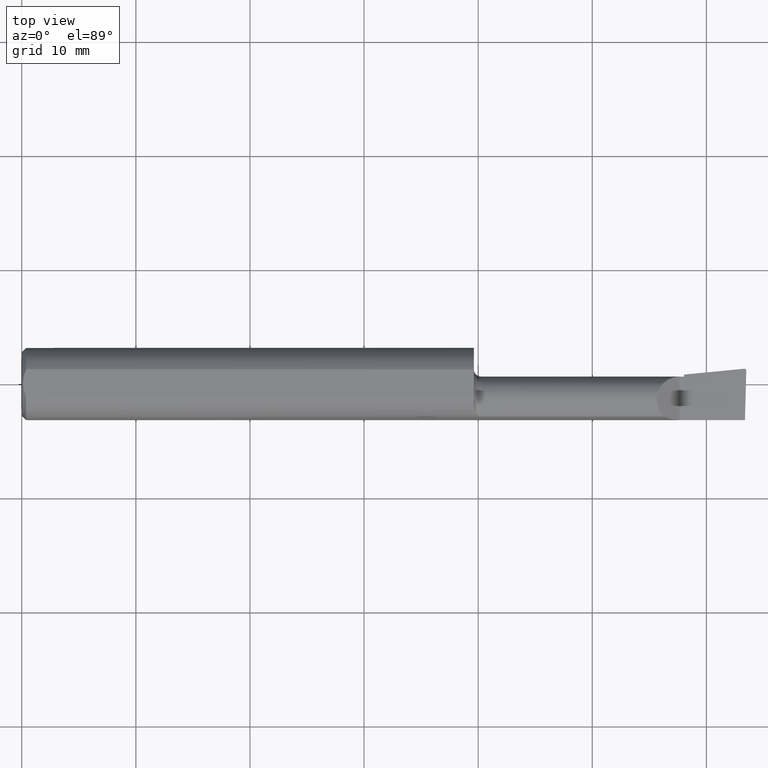
[diagram: clean part render]
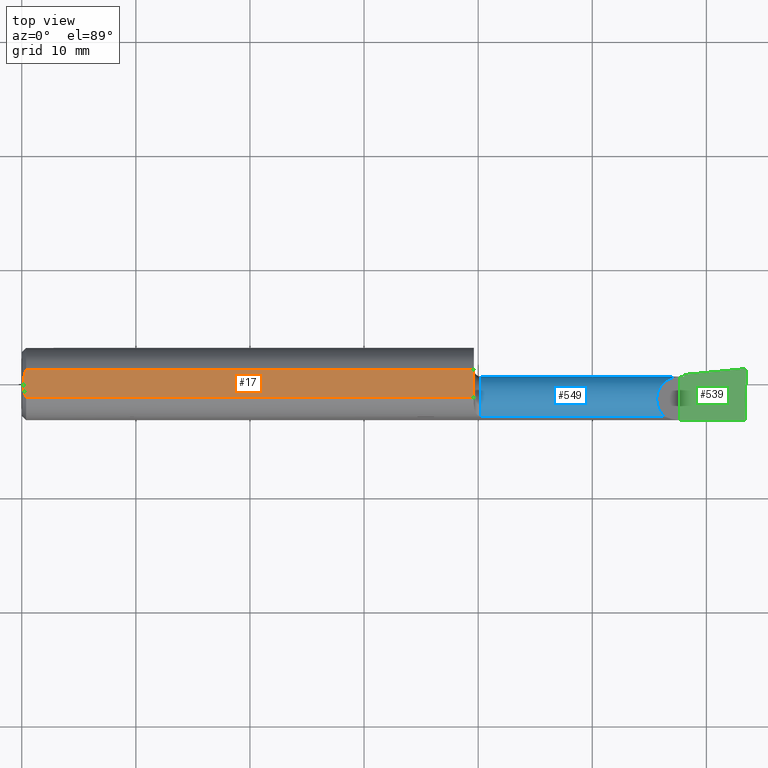
[diagram: same view with three faces highlighted in distinct colors, each labeled with its STEP entity id]
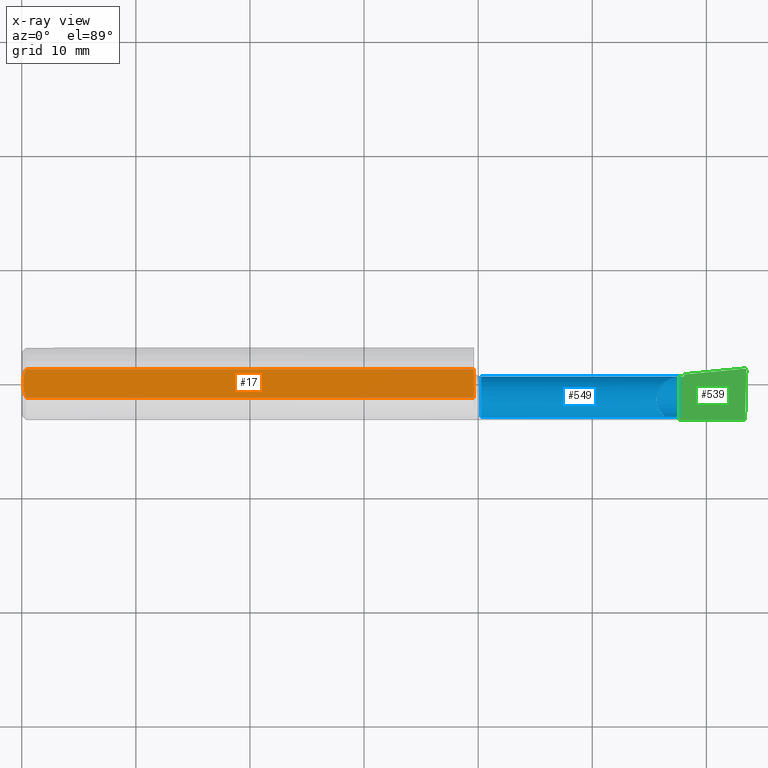
[diagram: x-ray of the same camera — body ghosted, the three highlighted faces saturated]
A machine part, top view with three faces highlighted in distinct colors.
The next image is the same camera in x-ray (body ghosted, the three faces saturated) — at least one of them is partly hidden behind the body in this view.
Their STEP definitions:

[orange] entity #17 — the highlighted planar face has unit normal (0, -0, -1).
#1 = CARTESIAN_POINT ( 'NONE',  ( 2.500000000000000000, 0.1748500000000000054, 0.1148500000000000076 ) ) ;
#6 = EDGE_CURVE ( 'NONE', #158, #464, #121, .T. ) ;
#9 = CARTESIAN_POINT ( 'NONE',  ( 0.005000000000000237761, 1.454187638523587873E-17, 0.1148500000000000076 ) ) ;
#17 = ADVANCED_FACE ( 'NONE', ( #153 ), #470, .F. ) ;
#37 = CARTESIAN_POINT ( 'NONE',  ( 1.560000000000000275, 0.1748500000000000054, 0.1148500000000000076 ) ) ;
#41 = CARTESIAN_POINT ( 'NONE',  ( 0.009410502401328815075, 0.03310661131402416191, 0.1148500000000000076 ) ) ;
#43 = B_SPLINE_CURVE_WITH_KNOTS ( 'NONE', 3,
 ( #295, #512, #244, #41, #493, #75 ),
 .UNSPECIFIED., .F., .F.,
 ( 4, 2, 4 ),
 ( 0.002298356357403497086, 0.002932796277434359007, 0.003567236197465221362 ),
 .UNSPECIFIED. ) ;
#52 = CARTESIAN_POINT ( 'NONE',  ( 1.560000000000000275, -0.04895916665957457392, 0.1148500000000000215 ) ) ;
#62 = DIRECTION ( 'NONE',  ( -1.000000000000000000, -0.0000000000000000000, -0.0000000000000000000 ) ) ;
#66 = CARTESIAN_POINT ( 'NONE',  ( 0.01195732443765553168, -0.04120008761723500251, 0.1148500000000000215 ) ) ;
#72 = ORIENTED_EDGE ( 'NONE', *, *, #433, .F. ) ;
#75 = CARTESIAN_POINT ( 'NONE',  ( 0.01499999999999999424, 0.04895916665957457392, 0.1148500000000000076 ) ) ;
#88 = VECTOR ( 'NONE', #118, 39.37007874015748143 ) ;
#118 = DIRECTION ( 'NONE',  ( 1.000000000000000000, 0.0000000000000000000, 0.0000000000000000000 ) ) ;
#121 = LINE ( 'NONE', #429, #88 ) ;
#153 = FACE_OUTER_BOUND ( 'NONE', #624, .T. ) ;
#158 = VERTEX_POINT ( 'NONE', #509 ) ;
#203 = B_SPLINE_CURVE_WITH_KNOTS ( 'NONE', 3,
 ( #405, #66, #469, #662, #473, #574 ),
 .UNSPECIFIED., .F., .F.,
 ( 4, 2, 4 ),
 ( 0.001029394377391489035, 0.001663875367397493060, 0.002298356357403497086 ),
 .UNSPECIFIED. ) ;
#231 = CARTESIAN_POINT ( 'NONE',  ( 1.560000000000000275, 0.04895916665957456004, 0.1148500000000000076 ) ) ;
#244 = CARTESIAN_POINT ( 'NONE',  ( 0.005947935873631425563, 0.01679708999422678192, 0.1148499999999999938 ) ) ;
#251 = VERTEX_POINT ( 'NONE', #275 ) ;
#275 = CARTESIAN_POINT ( 'NONE',  ( 0.01499999999999999077, -0.04895916665957456004, 0.1148500000000000215 ) ) ;
#295 = CARTESIAN_POINT ( 'NONE',  ( 0.005000000000000237761, 1.454187638523587873E-17, 0.1148500000000000076 ) ) ;
#306 = AXIS2_PLACEMENT_3D ( 'NONE', #1, #528, #434 ) ;
#317 = ORIENTED_EDGE ( 'NONE', *, *, #651, .F. ) ;
#341 = ORIENTED_EDGE ( 'NONE', *, *, #6, .F. ) ;
#359 = LINE ( 'NONE', #367, #657 ) ;
#367 = CARTESIAN_POINT ( 'NONE',  ( 0.0000000000000000000, -0.04895916665957456004, 0.1148500000000000076 ) ) ;
#390 = ORIENTED_EDGE ( 'NONE', *, *, #394, .F. ) ;
#391 = DIRECTION ( 'NONE',  ( -3.414809992080329023E-18, -1.000000000000000000, 4.882484975808304553E-17 ) ) ;
#394 = EDGE_CURVE ( 'NONE', #464, #479, #526, .T. ) ;
#405 = CARTESIAN_POINT ( 'NONE',  ( 0.01499999999999999077, -0.04895916665957456004, 0.1148500000000000215 ) ) ;
#429 = CARTESIAN_POINT ( 'NONE',  ( 0.0000000000000000000, 0.04895916665957457392, 0.1148500000000000076 ) ) ;
#433 = EDGE_CURVE ( 'NONE', #583, #158, #43, .T. ) ;
#434 = DIRECTION ( 'NONE',  ( 0.0000000000000000000, 1.000000000000000000, -4.882484975808304553E-17 ) ) ;
#449 = VECTOR ( 'NONE', #391, 39.37007874015748143 ) ;
#464 = VERTEX_POINT ( 'NONE', #231 ) ;
#469 = CARTESIAN_POINT ( 'NONE',  ( 0.009415874254822530556, -0.03313958207962815899, 0.1148500000000000354 ) ) ;
#470 = PLANE ( 'NONE',  #306 ) ;
#473 = CARTESIAN_POINT ( 'NONE',  ( 0.005000000000000194393, -0.008410771716546815852, 0.1148500000000000076 ) ) ;
#479 = VERTEX_POINT ( 'NONE', #52 ) ;
#493 = CARTESIAN_POINT ( 'NONE',  ( 0.01193974418109659645, 0.04115525648180389656, 0.1148500000000000076 ) ) ;
#509 = CARTESIAN_POINT ( 'NONE',  ( 0.01499999999999999424, 0.04895916665957457392, 0.1148500000000000076 ) ) ;
#512 = CARTESIAN_POINT ( 'NONE',  ( 0.005000000000000195260, 0.008410227287019747533, 0.1148500000000000215 ) ) ;
#524 = ORIENTED_EDGE ( 'NONE', *, *, #555, .F. ) ;
#526 = LINE ( 'NONE', #37, #449 ) ;
#528 = DIRECTION ( 'NONE',  ( 0.0000000000000000000, -4.882484975808304553E-17, -1.000000000000000000 ) ) ;
#555 = EDGE_CURVE ( 'NONE', #479, #251, #359, .T. ) ;
#574 = CARTESIAN_POINT ( 'NONE',  ( 0.005000000000000237761, 1.454187638523587873E-17, 0.1148500000000000076 ) ) ;
#583 = VERTEX_POINT ( 'NONE', #9 ) ;
#624 = EDGE_LOOP ( 'NONE', ( #390, #341, #72, #317, #524 ) ) ;
#651 = EDGE_CURVE ( 'NONE', #251, #583, #203, .T. ) ;
#657 = VECTOR ( 'NONE', #62, 39.37007874015748143 ) ;
#662 = CARTESIAN_POINT ( 'NONE',  ( 0.005932194444709924276, -0.01671525318617307979, 0.1148500000000000215 ) ) ;

[blue] entity #549 — the highlighted cylindrical surface (edge-blend (fillet) strip) has radius 2.0104 mm, axis along (-1, 0, -0).
#14 = VECTOR ( 'NONE', #669, 39.37007874015748143 ) ;
#18 =( BOUNDED_CURVE ( )  B_SPLINE_CURVE ( 3, ( #439, #492, #452, #554 ),
 .UNSPECIFIED., .F., .F. ) 
 B_SPLINE_CURVE_WITH_KNOTS ( ( 4, 4 ),
 ( 5.435892245814752499, 7.853981633974484566 ),
 .UNSPECIFIED. ) 
 CURVE ( )  GEOMETRIC_REPRESENTATION_ITEM ( )  RATIONAL_B_SPLINE_CURVE ( ( 1.000000000000000000, 0.5692753596694920537, 0.5692753596694920537, 1.000000000000000000 ) ) 
 REPRESENTATION_ITEM ( '' )  );
#29 = DIRECTION ( 'NONE',  ( -1.000000000000000000, 3.414809992080329023E-18, -0.0000000000000000000 ) ) ;
#31 = FACE_OUTER_BOUND ( 'NONE', #226, .T. ) ;
#45 = CARTESIAN_POINT ( 'NONE',  ( 2.285000000000000142, 0.02514999999999996058, 9.802154982235647216E-16 ) ) ;
#54 = CARTESIAN_POINT ( 'NONE',  ( 1.935000000000000053, -0.1133222222222223519, 0.05239843939104731063 ) ) ;
#58 = LINE ( 'NONE', #181, #531 ) ;
#60 = LINE ( 'NONE', #54, #197 ) ;
#61 = LINE ( 'NONE', #335, #441 ) ;
#69 = EDGE_CURVE ( 'NONE', #103, #482, #637, .T. ) ;
#76 = CARTESIAN_POINT ( 'NONE',  ( 1.585000000000000187, -0.05399999999999999939, 0.0000000000000000000 ) ) ;
#79 = ORIENTED_EDGE ( 'NONE', *, *, #242, .T. ) ;
#84 = EDGE_CURVE ( 'NONE', #186, #414, #550, .T. ) ;
#89 = CARTESIAN_POINT ( 'NONE',  ( 2.285000000000000142, 0.01818157456899024971, -0.03247372465149767073 ) ) ;
#93 = ORIENTED_EDGE ( 'NONE', *, *, #607, .T. ) ;
#95 = VERTEX_POINT ( 'NONE', #263 ) ;
#103 = VERTEX_POINT ( 'NONE', #468 ) ;
#105 = VERTEX_POINT ( 'NONE', #157 ) ;
#106 = DIRECTION ( 'NONE',  ( 1.000000000000000000, -3.414809992080329023E-18, 0.0000000000000000000 ) ) ;
#133 = CARTESIAN_POINT ( 'NONE',  ( 2.285000000000000142, -0.01935479767416500504, -0.07116482597324289006 ) ) ;
#157 = CARTESIAN_POINT ( 'NONE',  ( 2.487472449114545014, -0.05399999999999999939, -0.07914999999999994262 ) ) ;
#161 = CARTESIAN_POINT ( 'NONE',  ( 2.486868858499483803, -0.07705019563525719595, -0.07914999999999994262 ) ) ;
#164 = AXIS2_PLACEMENT_3D ( 'NONE', #76, #603, #453 ) ;
#172 = AXIS2_PLACEMENT_3D ( 'NONE', #630, #615, #614 ) ;
#181 = CARTESIAN_POINT ( 'NONE',  ( 2.500000000000000000, -0.05399999999999999939, -0.07914999999999994262 ) ) ;
#183 = VERTEX_POINT ( 'NONE', #654 ) ;
#184 = DIRECTION ( 'NONE',  ( 0.0000000000000000000, -1.000000000000000000, 0.0000000000000000000 ) ) ;
#186 = VERTEX_POINT ( 'NONE', #247 ) ;
#187 = CIRCLE ( 'NONE', #172, 0.07914999999999995650 ) ;
#188 = AXIS2_PLACEMENT_3D ( 'NONE', #438, #547, #184 ) ;
#196 = DIRECTION ( 'NONE',  ( 1.000000000000000000, -3.414809992080329023E-18, 0.0000000000000000000 ) ) ;
#197 = VECTOR ( 'NONE', #106, 39.37007874015748143 ) ;
#225 = ORIENTED_EDGE ( 'NONE', *, *, #69, .T. ) ;
#226 = EDGE_LOOP ( 'NONE', ( #326, #254, #442, #93, #79, #225, #356, #374, #525, #413 ) ) ;
#242 = EDGE_CURVE ( 'NONE', #507, #103, #18, .T. ) ;
#243 = VERTEX_POINT ( 'NONE', #133 ) ;
#247 = CARTESIAN_POINT ( 'NONE',  ( 1.585000000000000187, -0.1133222222222222825, 0.05239843939104733145 ) ) ;
#254 = ORIENTED_EDGE ( 'NONE', *, *, #458, .T. ) ;
#263 = CARTESIAN_POINT ( 'NONE',  ( 2.285000000000000142, -0.05399999999999999939, -0.07914999999999994262 ) ) ;
#268 = AXIS2_PLACEMENT_3D ( 'NONE', #613, #196, #400 ) ;
#278 = EDGE_CURVE ( 'NONE', #243, #95, #572, .T. ) ;
#298 = CARTESIAN_POINT ( 'NONE',  ( 2.702822108735688752E-19, 0.02514999999999991895, 9.802154982235641300E-16 ) ) ;
#303 = EDGE_CURVE ( 'NONE', #243, #307, #561, .T. ) ;
#307 = VERTEX_POINT ( 'NONE', #89 ) ;
#326 = ORIENTED_EDGE ( 'NONE', *, *, #551, .F. ) ;
#335 = CARTESIAN_POINT ( 'NONE',  ( 1.935000000000000053, -0.1133222222222223519, -0.05239843939104731063 ) ) ;
#349 = CARTESIAN_POINT ( 'NONE',  ( 2.487472449114545014, -0.05399999999999999939, -0.07914999999999994262 ) ) ;
#356 = ORIENTED_EDGE ( 'NONE', *, *, #501, .T. ) ;
#362 = CARTESIAN_POINT ( 'NONE',  ( 1.585000000000000187, -0.1133222222222222131, -0.05239843939104739390 ) ) ;
#374 = ORIENTED_EDGE ( 'NONE', *, *, #303, .F. ) ;
#392 = CYLINDRICAL_SURFACE ( 'NONE', #504, 0.07914999999999992875 ) ;
#400 = DIRECTION ( 'NONE',  ( 0.0000000000000000000, -1.000000000000000000, 0.0000000000000000000 ) ) ;
#413 = ORIENTED_EDGE ( 'NONE', *, *, #435, .F. ) ;
#414 = VERTEX_POINT ( 'NONE', #362 ) ;
#415 = DIRECTION ( 'NONE',  ( -1.000000000000000000, 3.414809992080329023E-18, -0.0000000000000000000 ) ) ;
#421 = CARTESIAN_POINT ( 'NONE',  ( 2.487482489302630384, -0.09806266089631200666, -0.06967435635555048468 ) ) ;
#427 = CARTESIAN_POINT ( 'NONE',  ( 2.489204846642126157, -0.1133222222222223519, -0.05239843939104731063 ) ) ;
#435 = EDGE_CURVE ( 'NONE', #105, #95, #58, .T. ) ;
#438 = CARTESIAN_POINT ( 'NONE',  ( 2.285000000000000142, -0.05399999999999999939, 0.0000000000000000000 ) ) ;
#439 = CARTESIAN_POINT ( 'NONE',  ( 2.217601560608951861, -0.1133222222222222686, 0.05239843939104743553 ) ) ;
#441 = VECTOR ( 'NONE', #29, 39.37007874015748143 ) ;
#442 = ORIENTED_EDGE ( 'NONE', *, *, #84, .F. ) ;
#452 = CARTESIAN_POINT ( 'NONE',  ( 2.183308174668249446, 0.02515000000000007507, 0.08669182533174910055 ) ) ;
#453 = DIRECTION ( 'NONE',  ( 0.0000000000000000000, -1.000000000000000000, 0.0000000000000000000 ) ) ;
#458 = EDGE_CURVE ( 'NONE', #183, #414, #61, .T. ) ;
#468 = CARTESIAN_POINT ( 'NONE',  ( 2.270000000000000018, 0.02514999999999986691, 2.816687638038912303E-17 ) ) ;
#482 = VERTEX_POINT ( 'NONE', #45 ) ;
#492 = CARTESIAN_POINT ( 'NONE',  ( 2.152626807264919506, -0.05593098589442772189, 0.1173731927350791099 ) ) ;
#501 = EDGE_CURVE ( 'NONE', #482, #307, #187, .T. ) ;
#504 = AXIS2_PLACEMENT_3D ( 'NONE', #517, #415, #521 ) ;
#507 = VERTEX_POINT ( 'NONE', #563 ) ;
#517 = CARTESIAN_POINT ( 'NONE',  ( 0.0000000000000000000, -0.05399999999999999245, 0.0000000000000000000 ) ) ;
#521 = DIRECTION ( 'NONE',  ( -3.414809992080329408E-18, -1.000000000000000000, 0.0000000000000000000 ) ) ;
#525 = ORIENTED_EDGE ( 'NONE', *, *, #278, .T. ) ;
#531 = VECTOR ( 'NONE', #602, 39.37007874015748143 ) ;
#547 = DIRECTION ( 'NONE',  ( -1.000000000000000000, 3.414809992080329023E-18, -0.0000000000000000000 ) ) ;
#549 = ADVANCED_FACE ( 'NONE', ( #31 ), #392, .T. ) ;
#550 = CIRCLE ( 'NONE', #164, 0.07914999999999988711 ) ;
#551 = EDGE_CURVE ( 'NONE', #183, #105, #575, .T. ) ;
#554 = CARTESIAN_POINT ( 'NONE',  ( 2.270000000000000018, 0.02514999999999986691, 2.816687638038912303E-17 ) ) ;
#561 = CIRCLE ( 'NONE', #268, 0.07914999999999992875 ) ;
#563 = CARTESIAN_POINT ( 'NONE',  ( 2.217601560608951861, -0.1133222222222222686, 0.05239843939104743553 ) ) ;
#572 = CIRCLE ( 'NONE', #188, 0.07914999999999995650 ) ;
#575 =( BOUNDED_CURVE ( )  B_SPLINE_CURVE ( 3, ( #427, #421, #161, #349 ),
 .UNSPECIFIED., .F., .F. ) 
 B_SPLINE_CURVE_WITH_KNOTS ( ( 4, 4 ),
 ( 5.645941690095284571, 6.493234751460120968 ),
 .UNSPECIFIED. ) 
 CURVE ( )  GEOMETRIC_REPRESENTATION_ITEM ( )  RATIONAL_B_SPLINE_CURVE ( ( 1.000000000000000000, 0.9410639745696121050, 0.9410639745696121050, 1.000000000000000000 ) ) 
 REPRESENTATION_ITEM ( '' )  );
#602 = DIRECTION ( 'NONE',  ( -1.000000000000000000, 5.691349986800549142E-18, -0.0000000000000000000 ) ) ;
#603 = DIRECTION ( 'NONE',  ( -1.000000000000000000, 3.414809992080329023E-18, -0.0000000000000000000 ) ) ;
#607 = EDGE_CURVE ( 'NONE', #186, #507, #60, .T. ) ;
#613 = CARTESIAN_POINT ( 'NONE',  ( 2.285000000000000142, -0.05399999999999999939, 0.0000000000000000000 ) ) ;
#614 = DIRECTION ( 'NONE',  ( 0.0000000000000000000, -1.000000000000000000, 0.0000000000000000000 ) ) ;
#615 = DIRECTION ( 'NONE',  ( -1.000000000000000000, 3.414809992080329023E-18, -0.0000000000000000000 ) ) ;
#630 = CARTESIAN_POINT ( 'NONE',  ( 2.285000000000000142, -0.05399999999999999939, 0.0000000000000000000 ) ) ;
#637 = LINE ( 'NONE', #298, #14 ) ;
#654 = CARTESIAN_POINT ( 'NONE',  ( 2.489204846642126157, -0.1133222222222223519, -0.05239843939104731063 ) ) ;
#669 = DIRECTION ( 'NONE',  ( 1.000000000000000000, -3.414809992080329023E-18, 0.0000000000000000000 ) ) ;

[green] entity #539 — the highlighted planar face has unit normal (-0, 0, -1).
#14 = VECTOR ( 'NONE', #669, 39.37007874015748143 ) ;
#20 = VERTEX_POINT ( 'NONE', #47 ) ;
#25 = VERTEX_POINT ( 'NONE', #385 ) ;
#34 = CARTESIAN_POINT ( 'NONE',  ( 2.493310817358693754, 0.05249616680637383265, -5.124634811486028890E-17 ) ) ;
#39 = AXIS2_PLACEMENT_3D ( 'NONE', #99, #149, #623 ) ;
#45 = CARTESIAN_POINT ( 'NONE',  ( 2.285000000000000142, 0.02514999999999996058, 9.802154982235647216E-16 ) ) ;
#47 = CARTESIAN_POINT ( 'NONE',  ( 2.492906680581910006, 0.05246699102467097114, -6.532122848641467145E-17 ) ) ;
#51 = VECTOR ( 'NONE', #240, 39.37007874015748854 ) ;
#67 = LINE ( 'NONE', #337, #376 ) ;
#69 = EDGE_CURVE ( 'NONE', #103, #482, #637, .T. ) ;
#83 = LINE ( 'NONE', #605, #51 ) ;
#99 = CARTESIAN_POINT ( 'NONE',  ( 2.500000000000000000, -0.2500000000000000555, -6.829619984160658046E-17 ) ) ;
#103 = VERTEX_POINT ( 'NONE', #468 ) ;
#119 = VERTEX_POINT ( 'NONE', #559 ) ;
#143 =( BOUNDED_CURVE ( )  B_SPLINE_CURVE ( 3, ( #582, #219, #612, #260 ),
 .UNSPECIFIED., .F., .F. ) 
 B_SPLINE_CURVE_WITH_KNOTS ( ( 4, 4 ),
 ( 1.953092279228668682, 3.511516179717975472 ),
 .UNSPECIFIED. ) 
 CURVE ( )  GEOMETRIC_REPRESENTATION_ITEM ( )  RATIONAL_B_SPLINE_CURVE ( ( 1.000000000000000000, 0.8076450242550295977, 0.8076450242550295977, 1.000000000000000000 ) ) 
 REPRESENTATION_ITEM ( '' )  );
#149 = DIRECTION ( 'NONE',  ( -4.194046792260684025E-16, 0.0000000000000000000, -1.000000000000000000 ) ) ;
#159 = LINE ( 'NONE', #601, #542 ) ;
#175 = CARTESIAN_POINT ( 'NONE',  ( 2.492906680581910006, 0.05246699102467097114, -6.532122848641467145E-17 ) ) ;
#176 = ORIENTED_EDGE ( 'NONE', *, *, #594, .F. ) ;
#219 = CARTESIAN_POINT ( 'NONE',  ( 2.499910038027521875, 0.04971449087509938192, -5.401409214261198838E-17 ) ) ;
#221 = EDGE_CURVE ( 'NONE', #399, #20, #387, .T. ) ;
#240 = DIRECTION ( 'NONE',  ( 0.02617694830793667465, 0.9996573249755555945, -1.081567693923466137E-17 ) ) ;
#248 = EDGE_CURVE ( 'NONE', #25, #546, #586, .T. ) ;
#255 = DIRECTION ( 'NONE',  ( -0.0000000000000000000, 1.000000000000000000, -0.0000000000000000000 ) ) ;
#260 = CARTESIAN_POINT ( 'NONE',  ( 2.493512870449331675, 0.05249616680637383959, -5.122214988120493535E-17 ) ) ;
#261 = VECTOR ( 'NONE', #255, 39.37007874015748143 ) ;
#276 = CARTESIAN_POINT ( 'NONE',  ( 4.111069666048746882E-31, -0.1248499999999999888, 9.802154982235641300E-16 ) ) ;
#281 = EDGE_LOOP ( 'NONE', ( #372, #653, #397, #176, #389, #635, #327, #448 ) ) ;
#283 = VECTOR ( 'NONE', #345, 39.37007874015748143 ) ;
#285 = LINE ( 'NONE', #604, #261 ) ;
#298 = CARTESIAN_POINT ( 'NONE',  ( 2.702822108735688752E-19, 0.02514999999999991895, 9.802154982235641300E-16 ) ) ;
#300 = PLANE ( 'NONE',  #39 ) ;
#321 = DIRECTION ( 'NONE',  ( 0.9953961983671787417, 0.09584575252022459191, -4.174738232790345673E-16 ) ) ;
#327 = ORIENTED_EDGE ( 'NONE', *, *, #544, .F. ) ;
#337 = CARTESIAN_POINT ( 'NONE',  ( 2.285000000000000142, -0.2500000000000000555, 2.187580619199813988E-17 ) ) ;
#345 = DIRECTION ( 'NONE',  ( -1.000000000000000000, -0.0000000000000000000, -0.0000000000000000000 ) ) ;
#368 = EDGE_CURVE ( 'NONE', #25, #644, #83, .T. ) ;
#372 = ORIENTED_EDGE ( 'NONE', *, *, #368, .T. ) ;
#376 = VECTOR ( 'NONE', #444, 39.37007874015748143 ) ;
#383 = EDGE_CURVE ( 'NONE', #482, #119, #67, .T. ) ;
#385 = CARTESIAN_POINT ( 'NONE',  ( 2.495338905960690301, -0.1248500000000000582, -6.632093541198147639E-17 ) ) ;
#387 =( BOUNDED_CURVE ( )  B_SPLINE_CURVE ( 3, ( #548, #34, #663, #175 ),
 .UNSPECIFIED., .F., .F. ) 
 B_SPLINE_CURVE_WITH_KNOTS ( ( 4, 4 ),
 ( 3.511516179717975472, 3.604018710826573546 ),
 .UNSPECIFIED. ) 
 CURVE ( )  GEOMETRIC_REPRESENTATION_ITEM ( )  RATIONAL_B_SPLINE_CURVE ( ( 1.000000000000000000, 0.9992870672494007511, 0.9992870672494007511, 1.000000000000000000 ) ) 
 REPRESENTATION_ITEM ( '' )  );
#389 = ORIENTED_EDGE ( 'NONE', *, *, #383, .F. ) ;
#397 = ORIENTED_EDGE ( 'NONE', *, *, #221, .T. ) ;
#399 = VERTEX_POINT ( 'NONE', #437 ) ;
#437 = CARTESIAN_POINT ( 'NONE',  ( 2.493512870449331675, 0.05249616680637383959, -5.122214988120493535E-17 ) ) ;
#443 = FACE_OUTER_BOUND ( 'NONE', #281, .T. ) ;
#444 = DIRECTION ( 'NONE',  ( 3.414809992080329408E-18, 1.000000000000000000, -1.432187289346423802E-33 ) ) ;
#448 = ORIENTED_EDGE ( 'NONE', *, *, #248, .F. ) ;
#468 = CARTESIAN_POINT ( 'NONE',  ( 2.270000000000000018, 0.02514999999999986691, 2.816687638038912303E-17 ) ) ;
#482 = VERTEX_POINT ( 'NONE', #45 ) ;
#539 = ADVANCED_FACE ( 'NONE', ( #443 ), #300, .F. ) ;
#542 = VECTOR ( 'NONE', #321, 39.37007874015748143 ) ;
#544 = EDGE_CURVE ( 'NONE', #546, #103, #285, .T. ) ;
#546 = VERTEX_POINT ( 'NONE', #667 ) ;
#548 = CARTESIAN_POINT ( 'NONE',  ( 2.493512870449331675, 0.05249616680637383959, -5.122214988120493535E-17 ) ) ;
#559 = CARTESIAN_POINT ( 'NONE',  ( 2.285000000000000142, 0.03244785463753242782, 9.838921289681448013E-16 ) ) ;
#582 = CARTESIAN_POINT ( 'NONE',  ( 2.499806390372797171, 0.04575634663142228581, -6.816679106956261721E-17 ) ) ;
#586 = LINE ( 'NONE', #276, #283 ) ;
#594 = EDGE_CURVE ( 'NONE', #119, #20, #159, .T. ) ;
#601 = CARTESIAN_POINT ( 'NONE',  ( 1.387204702863203742, -0.05399999999999999939, 3.984153547983287662E-16 ) ) ;
#604 = CARTESIAN_POINT ( 'NONE',  ( 2.270000000000000018, -0.2500000000000000555, 2.816687638038912303E-17 ) ) ;
#605 = CARTESIAN_POINT ( 'NONE',  ( 2.492067177432473635, -0.2497922717304240092, -6.496913693731578984E-17 ) ) ;
#612 = CARTESIAN_POINT ( 'NONE',  ( 2.497312560284842053, 0.05249616680637388816, -5.292469782314654425E-17 ) ) ;
#623 = DIRECTION ( 'NONE',  ( -1.000000000000000000, 0.0000000000000000000, 4.194046792260684025E-16 ) ) ;
#627 = CARTESIAN_POINT ( 'NONE',  ( 2.499806390372797171, 0.04575634663142228581, -6.816679106956261721E-17 ) ) ;
#635 = ORIENTED_EDGE ( 'NONE', *, *, #69, .F. ) ;
#637 = LINE ( 'NONE', #298, #14 ) ;
#644 = VERTEX_POINT ( 'NONE', #627 ) ;
#653 = ORIENTED_EDGE ( 'NONE', *, *, #664, .T. ) ;
#663 = CARTESIAN_POINT ( 'NONE',  ( 2.493108609909240325, 0.05248643460740284872, -5.116154136438505500E-17 ) ) ;
#664 = EDGE_CURVE ( 'NONE', #644, #399, #143, .T. ) ;
#667 = CARTESIAN_POINT ( 'NONE',  ( 2.270000000000000018, -0.1248500000000000165, 2.816687638038912303E-17 ) ) ;
#669 = DIRECTION ( 'NONE',  ( 1.000000000000000000, -3.414809992080329023E-18, 0.0000000000000000000 ) ) ;